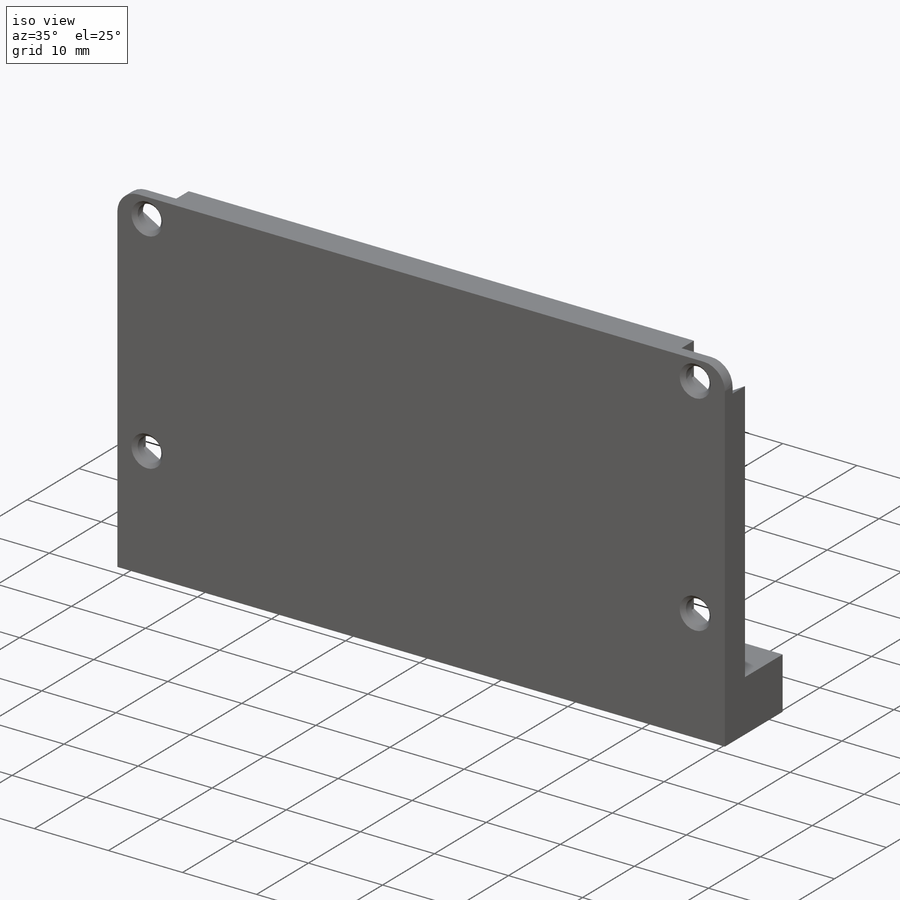
[diagram: iso view]
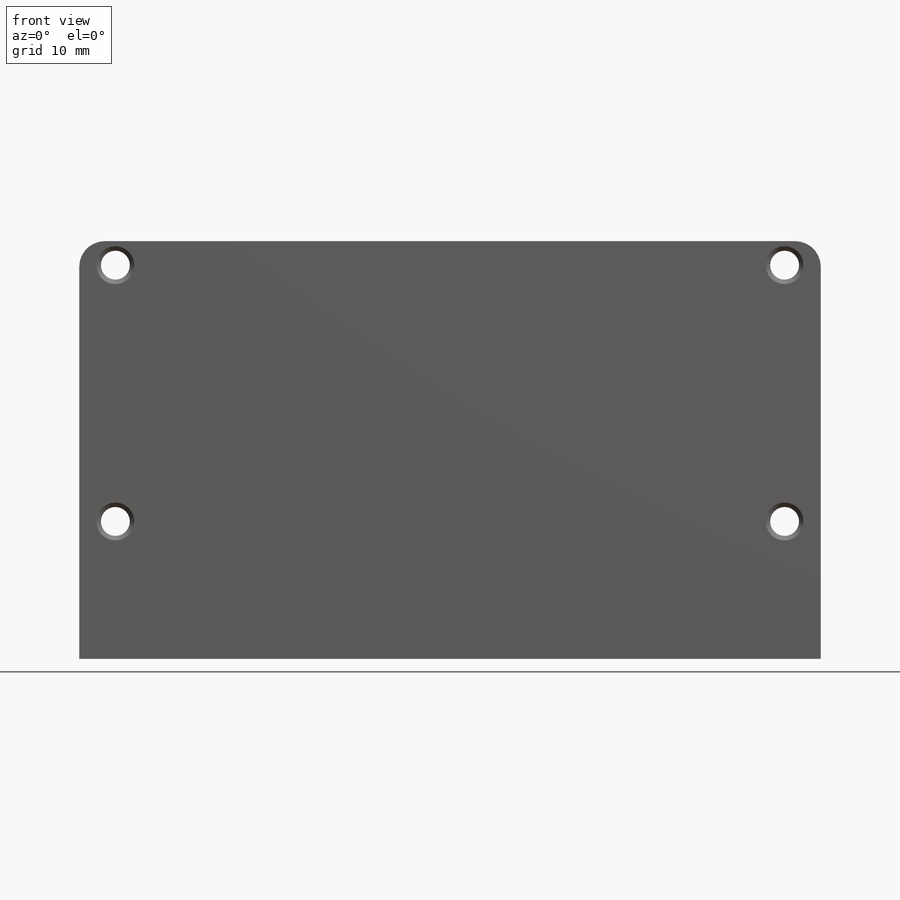
[diagram: front view]
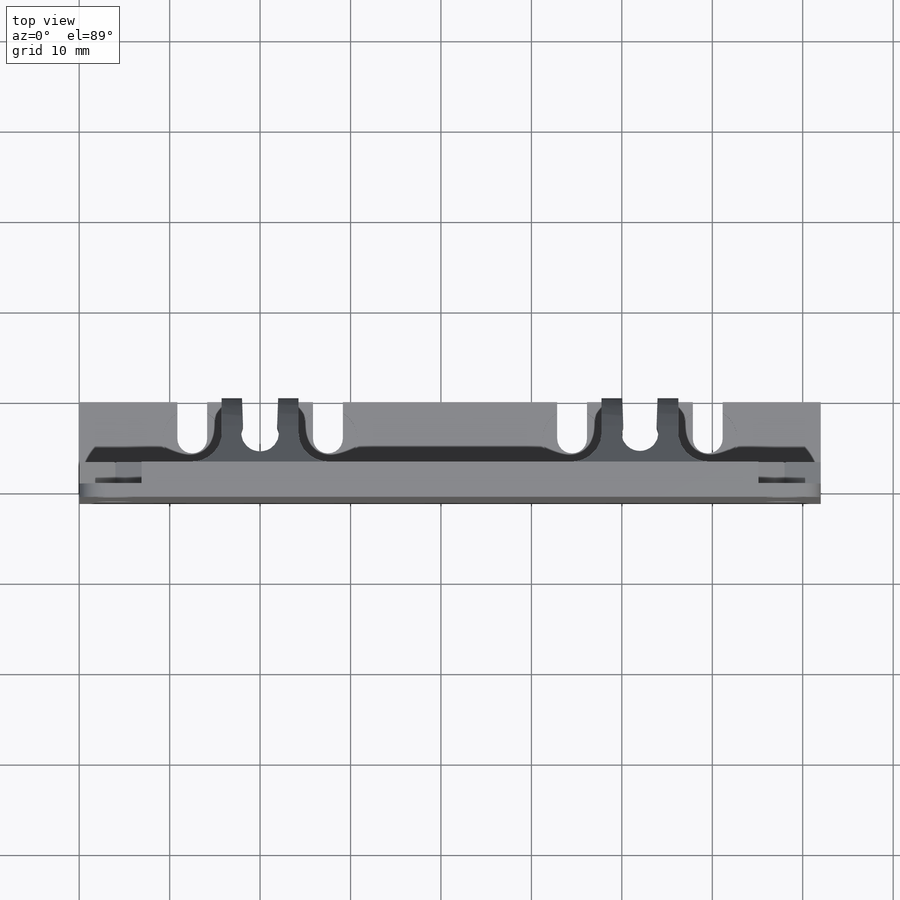
[diagram: top view]
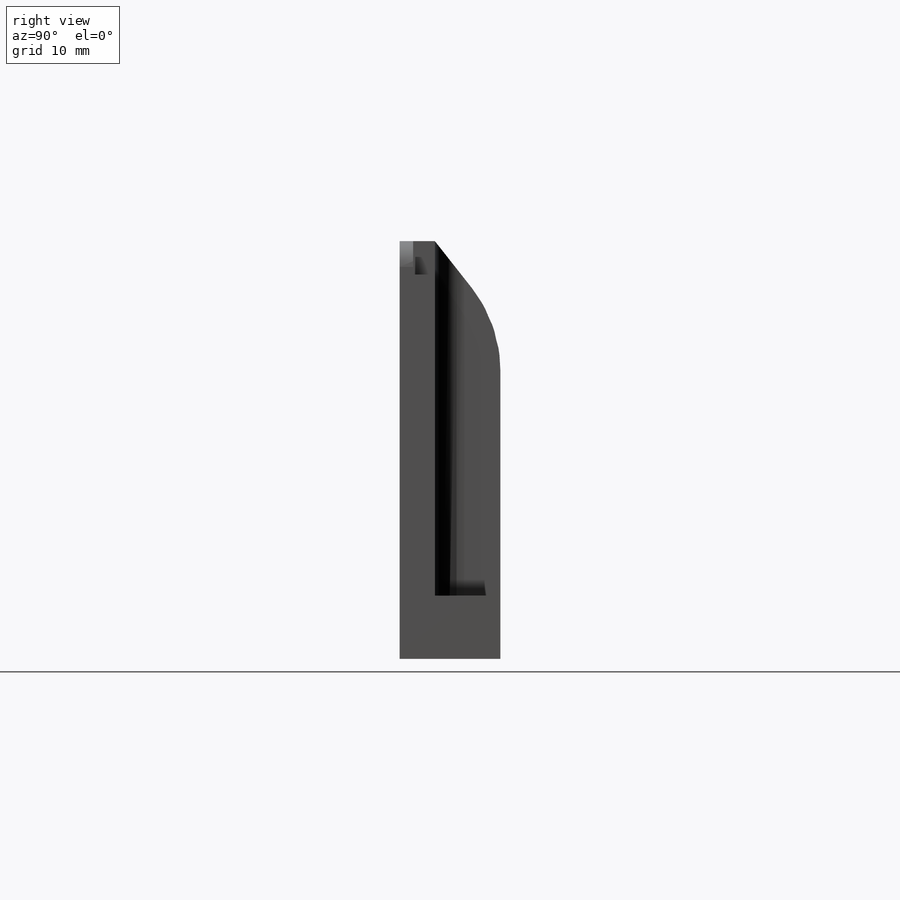
[diagram: right view]
SOLIDWORKS PART (.sldprt)
format: sldprt  version: not decoded by parser v0  size: 566,784 bytes
history: native  units: mm
features: sketch x13, cut_extrude x8, mirror x4, extrude x3, chamfer x3, material x1, plane x1, fillet x1 (+12 scaffold rows collapsed)
feature tree (46):
  scaffold x12  (default folders/planes/origin — collapsed)
  material  "Material <not specified>"
  sketch  "Sketch1"  dims[c1.D1=3.2mm c1.D2=3.2mm c2.D1=3.2mm c2.D2=2.85mm c3.D2=0.0mm c3.D1=46.8mm]
  extrude  "Boss-Extrude1"  Depth=11.15mm
  sketch  "Sketch2"  dims[D1=5.0mm D2=20.0mm]
  cut_extrude  "Cut-Extrude1"  Depth=8mm
  sketch  "Sketch3"  dims[c1.D2=3.3mm c1.D3=3.3mm c1.D4=3.3mm c1.D5=3.3mm c1.D6=6.5mm c1.D7=3.25mm c2.D4=15.0mm c2.D5=7.5mm c2.D7=20.0mm c2.D1=0.0mm]
  cut_extrude  "Cut-Extrude2"  [1 undecoded]
  sketch  "Sketch4"  dims[D1=6.5mm D2=6.5mm]
  cut_extrude  "Cut-Extrude3"  Depth=6mm
  sketch  "Sketch6"  dims[c1.D1=41.0mm c1.D2=41.0mm c2.D1=41.0mm]
  cut_extrude  "Cut-Extrude5"  Depth=7mm
  plane  "Plane1"
  mirror  "Mirror1"
  sketch  "Sketch8"  dims[D1=0.0mm]
  sketch  "Sketch9"  dims[D1=0.0mm]
  sketch  "Sketch12"  dims[c1.D1=4.2mm c1.D2=4.1mm c1.D3=4.0mm c1.D6=2.0mm c2.D3=1.3mm c2.D4=1.3mm c2.D5=0.2mm c2.D1=1.25mm c3.D5=1.25mm c3.D6=0.2mm c3.D7=0.2mm]
  extrude  "Boss-Extrude2"  Depth=7mm
  chamfer  "Chamfer3"  Distance=1.1mm Angle=45deg
  chamfer  "Chamfer4"  Distance=1.1mm Angle=45deg
  cut_extrude  "Cut-Extrude12"  [1 undecoded]
  fillet  "Fillet3"  Radius=15mm
  sketch  "Sketch13"  dims[D1=5.7mm]
  sketch  "Sketch14"
  cut_extrude  "Cut-Extrude14"  [1 undecoded]
  mirror  "Mirror3"
  sketch  "Sketch18"  dims[D1=0.0mm D2=0.0mm]
  extrude  "Boss-Extrude3"  Depth=3.5mm
  mirror  "Mirror5"
  sketch  "Sketch19"  dims[D1=~3.175611mm]
  cut_extrude  "Cut-Extrude16"  [1 undecoded]
  sketch  "Sketch20"  dims[c1.D1=6.5mm c1.D2=6.5mm c2.D1=5.5mm c2.D2=~4.276432mm c3.D1=~3.508263mm c3.D2=~4.304464mm]
  cut_extrude  "Cut-Extrude17"  Depth=2.4mm
  mirror  "Mirror7"
  chamfer  "Chamfer5"  Distance=0.5mm Angle=45deg
decode coverage: 23 of 32 modeling features carry decoded parameters
note: ~ marks probable driven/reference dimensions
note: 4 parameter values undecoded
summary: no parameter record found for 4 features
note: suppression state not decoded; provenance and decode notes live in map.json
